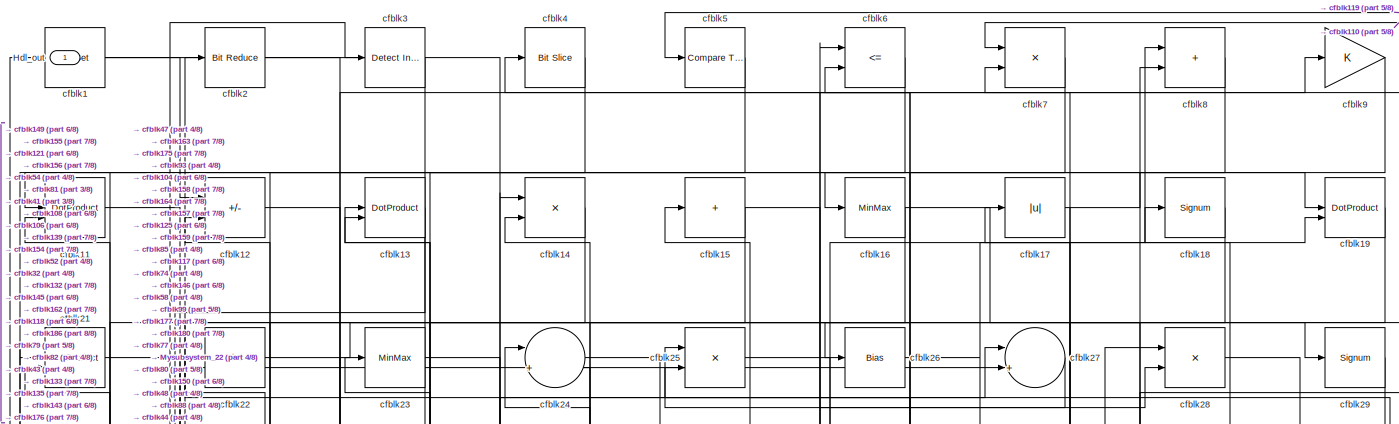
[diagram: root canvas - part 1/8, full width, top band]
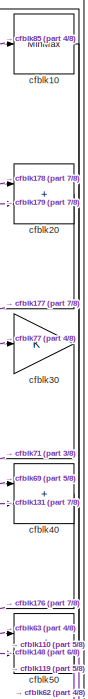
[diagram: root canvas - part 2/8, top right region]
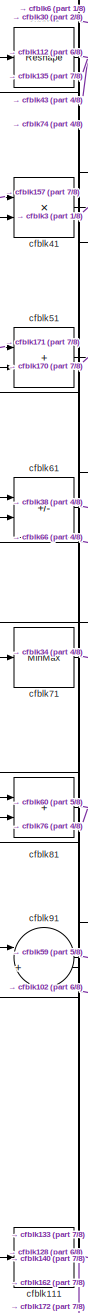
[diagram: root canvas - part 3/8, middle left region]
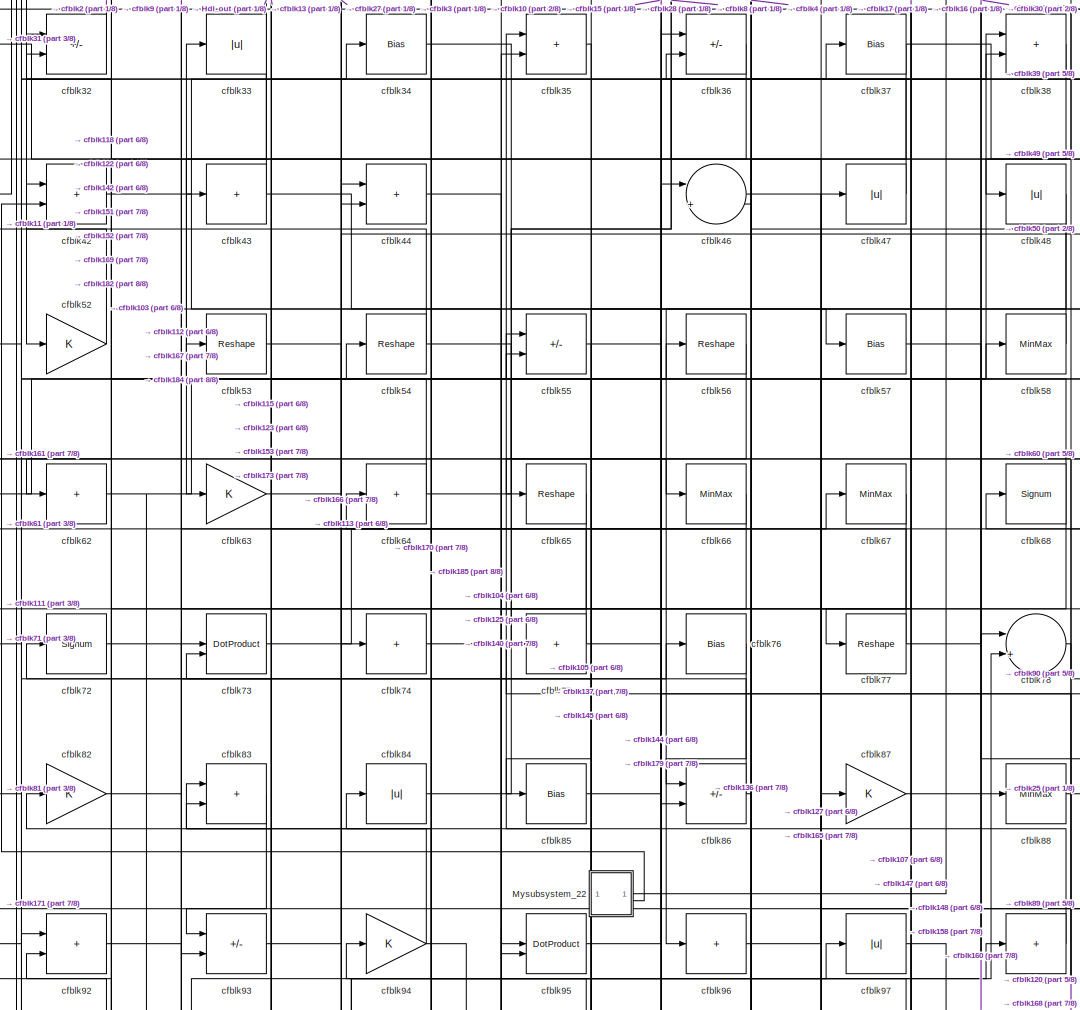
[diagram: root canvas - part 4/8, central region]
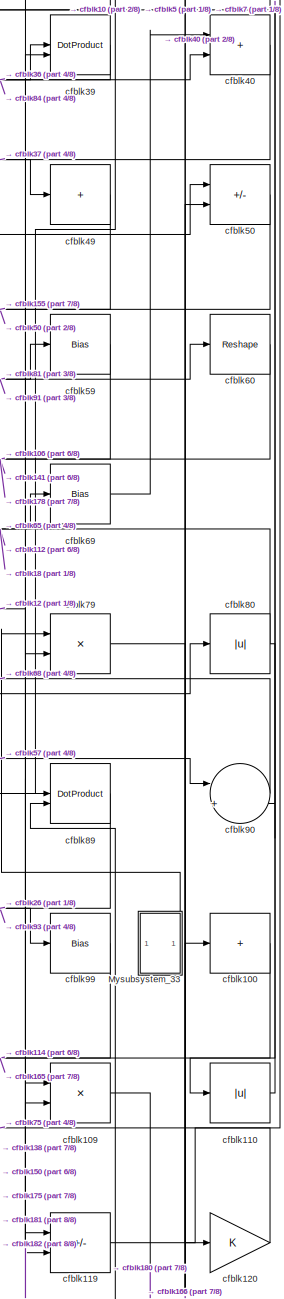
[diagram: root canvas - part 5/8, middle right region]
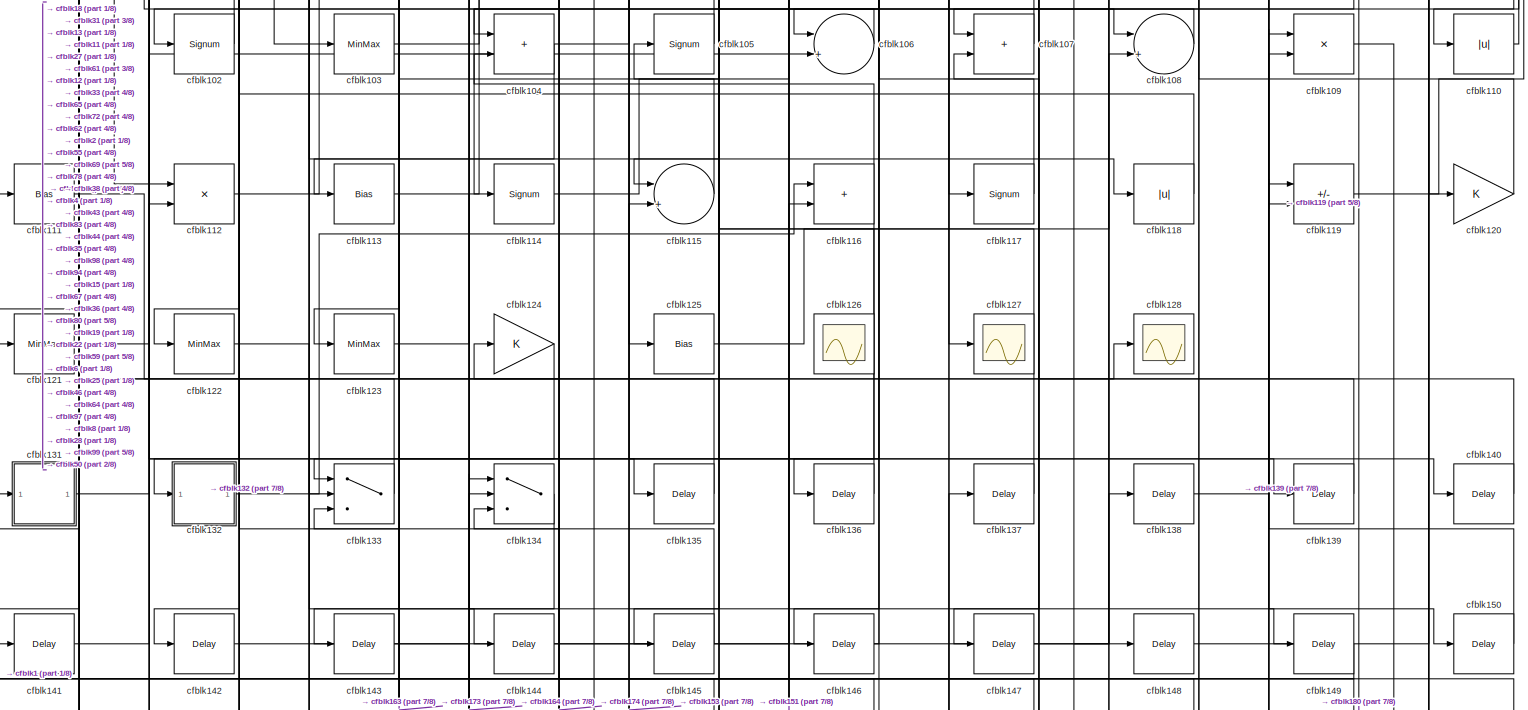
[diagram: root canvas - part 6/8, full width, middle band]
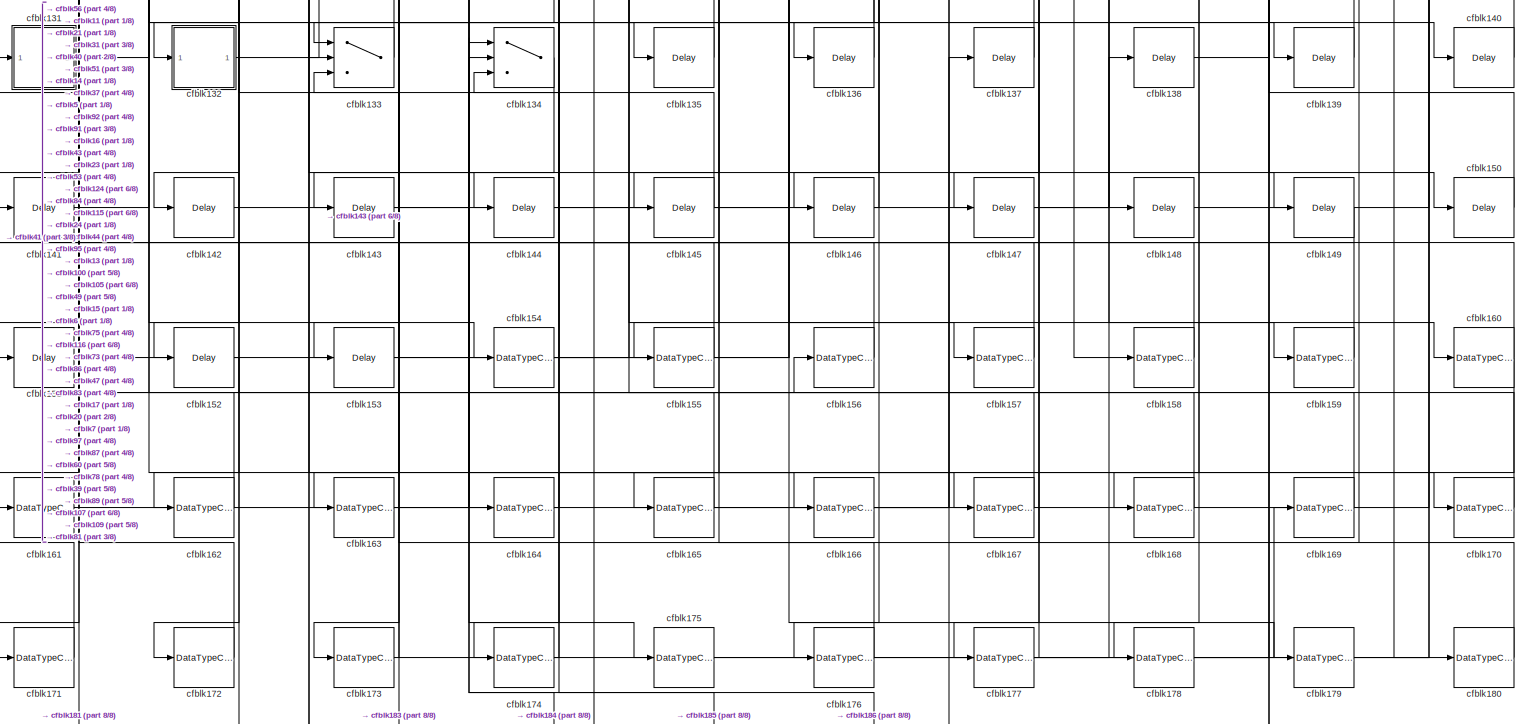
[diagram: root canvas - part 7/8, full width, bottom band]
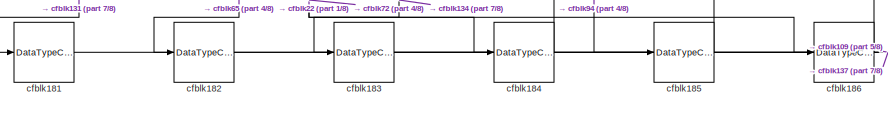
[diagram: root canvas - part 8/8, bottom left region]
MODEL slx_869042adbb3d
KIND model
CONFIG AbsTol = auto
CONFIG EnableMultiTasking = off
CONFIG FixedStep = auto
CONFIG MaxStep = auto
CONFIG MinStep = auto
CONFIG RelTol = 1e-3
CONFIG SampleTimeConstraint = Unconstrained
CONFIG SolverName = VariableStepAuto
CONFIG StartTime = 0.0
CONFIG StopTime = 10.0
BLOCK [Outport] Hdl_out
  OutDataTypeStr = uint8
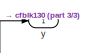
[diagram: Mysubsystem_22 - part 1/3, top right region]
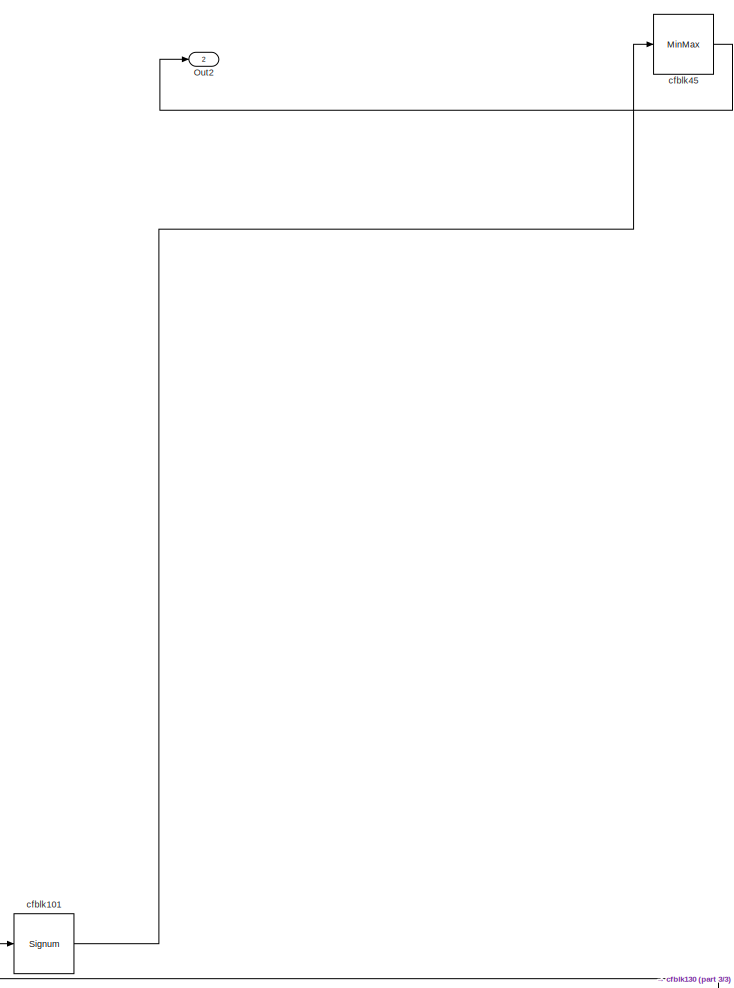
[diagram: Mysubsystem_22 - part 2/3, middle left region]
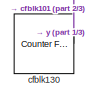
[diagram: Mysubsystem_22 - part 3/3, bottom right region]
BLOCK [SubSystem] Mysubsystem_22
  RTWFcnName = Mysubsystem_22
  RTWFcnNameOpts = User specified
  RTWFileNameOpts = Use function name
  RTWSystemCode = Reusable function
  TreatAsAtomicUnit = on
BLOCK [Outport] Mysubsystem_22/Out2
  Port = 2
BLOCK [Signum] Mysubsystem_22/cfblk101
BLOCK [Reference] Mysubsystem_22/cfblk130  REF=hdlsllib/Sources/Counter
Free-Running
  SourceBlock = hdlsllib/Sources/Counter\nFree-Running
  SourceType = Counter Free-Running
BLOCK [MinMax] Mysubsystem_22/cfblk45
BLOCK [Outport] Mysubsystem_22/y
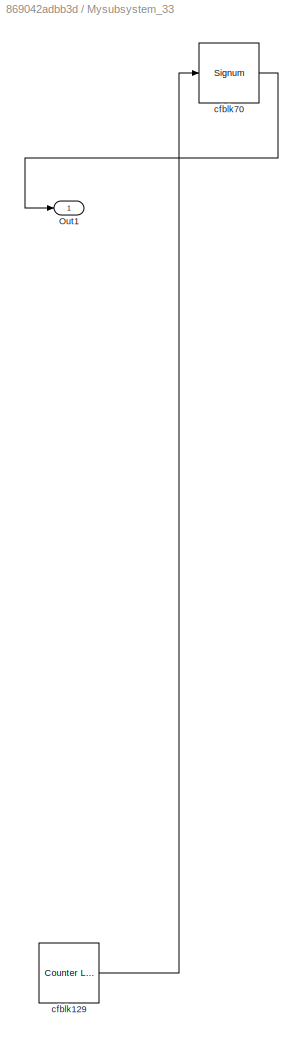
BLOCK [SubSystem] Mysubsystem_33
  RTWFcnName = Mysubsystem_33
  RTWFcnNameOpts = User specified
  RTWFileNameOpts = Use function name
  RTWSystemCode = Reusable function
  TreatAsAtomicUnit = on
BLOCK [Outport] Mysubsystem_33/Out1
BLOCK [Reference] Mysubsystem_33/cfblk129  REF=hdlsllib/Sources/Counter
Limited
  SourceBlock = hdlsllib/Sources/Counter\nLimited
  SourceType = Counter Limited
BLOCK [Signum] Mysubsystem_33/cfblk70
BLOCK [Reference] cfblk1  REF=simulink/Logic and Bit
Operations/Bit Set
  LibrarySourceBlock = hdlsllib/Logic and Bit\nOperations/Bit Set
  SourceBlock = simulink/Logic and Bit\nOperations/Bit Set
  SourceType = Bit Set
BLOCK [MinMax] cfblk10
  OutDataTypeStr = uint8
BLOCK [Sum] cfblk100
  IconShape = rectangular
  Inputs = +
  OutDataTypeStr = uint8
BLOCK [Signum] cfblk102
BLOCK [MinMax] cfblk103
  OutDataTypeStr = uint8
BLOCK [Sum] cfblk104
  IconShape = rectangular
  OutDataTypeStr = uint8
BLOCK [Signum] cfblk105
BLOCK [Sum] cfblk106
  Inputs = |++
  OutDataTypeStr = uint8
BLOCK [Sum] cfblk107
  IconShape = rectangular
  OutDataTypeStr = uint8
BLOCK [Sum] cfblk108
  Inputs = |++
  OutDataTypeStr = uint8
BLOCK [Product] cfblk109
  Inputs = */
  OutDataTypeStr = uint8
  RndMeth = Zero
  SaturateOnIntegerOverflow = on
BLOCK [DotProduct] cfblk11
  OutDataTypeStr = uint8
BLOCK [Abs] cfblk110
  OutDataTypeStr = uint8
  SaturateOnIntegerOverflow = off
BLOCK [Bias] cfblk111
  Bias = 0.0
  SaturateOnIntegerOverflow = off
BLOCK [Product] cfblk112
  Inputs = */
  OutDataTypeStr = uint8
  RndMeth = Zero
  SaturateOnIntegerOverflow = on
BLOCK [Bias] cfblk113
  Bias = 0.0
  SaturateOnIntegerOverflow = off
BLOCK [Signum] cfblk114
BLOCK [Sum] cfblk115
  Inputs = |++
  OutDataTypeStr = uint8
BLOCK [Sum] cfblk116
  IconShape = rectangular
  OutDataTypeStr = uint8
BLOCK [Signum] cfblk117
BLOCK [Abs] cfblk118
  OutDataTypeStr = uint8
  SaturateOnIntegerOverflow = off
BLOCK [Sum] cfblk119
  IconShape = rectangular
  Inputs = +-
  OutDataTypeStr = uint8
BLOCK [Sum] cfblk12
  IconShape = rectangular
  Inputs = +-
  OutDataTypeStr = uint8
BLOCK [Gain] cfblk120
  OutDataTypeStr = uint8
BLOCK [MinMax] cfblk121
  OutDataTypeStr = uint8
BLOCK [MinMax] cfblk122
  OutDataTypeStr = uint8
BLOCK [MinMax] cfblk123
  OutDataTypeStr = uint8
BLOCK [Gain] cfblk124
  OutDataTypeStr = uint8
BLOCK [Bias] cfblk125
  Bias = 0.0
  SaturateOnIntegerOverflow = off
BLOCK [Scope] cfblk126
  Floating = on
  NumInputPorts = 1
  ScopeSpecificationString = Simulink.scopes.TimeScopeBlockCfg('CurrentConfiguration', extmgr.ConfigurationSet(extmgr.Configuration('Core','General UI',true,'FigureColor',[0.156862745098039 0.156862745098039 0.156862745098039]),extmgr.Configuration('Core','Source UI',true),extmgr.Configuration('Sources','WiredSimulink',true,'DataLoggingVariableName','ScopeData1','DataLoggingSaveFormat','StructureWithTime','DataLoggingLimitDat...<+2713ch>
BLOCK [Scope] cfblk127
  Floating = off
  NumInputPorts = 1
  ScopeSpecificationString = Simulink.scopes.TimeScopeBlockCfg('CurrentConfiguration', extmgr.ConfigurationSet(extmgr.Configuration('Core','General UI',true),extmgr.Configuration('Core','Source UI',true),extmgr.Configuration('Sources','WiredSimulink',true,'DataLoggingVariableName','ScopeData2','DataLoggingSaveFormat','Array','DataLoggingLimitDataPoints',true,'DataLoggingDecimation','1'),extmgr.Configuration('Visuals','Time Do...<+868ch>
BLOCK [Scope] cfblk128
  Floating = off
  NumInputPorts = 1
  ScopeSpecificationString = Simulink.scopes.TimeScopeBlockCfg('CurrentConfiguration', extmgr.ConfigurationSet(extmgr.Configuration('Core','General UI',true),extmgr.Configuration('Core','Source UI',true),extmgr.Configuration('Sources','WiredSimulink',true,'DataLoggingVariableName','ScopeData2','DataLoggingSaveFormat','Array','DataLoggingLimitDataPoints',true,'DataLoggingDecimation','1'),extmgr.Configuration('Visuals','Time Do...<+868ch>
BLOCK [DotProduct] cfblk13
  OutDataTypeStr = uint8
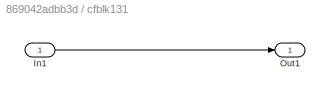
BLOCK [SubSystem] cfblk131
  LibrarySourceBlock = hdlsllib/Ports &\nSubsystems/Subsystem
BLOCK [Inport] cfblk131/In1
BLOCK [Outport] cfblk131/Out1
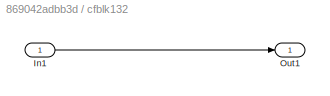
BLOCK [SubSystem] cfblk132
  LibrarySourceBlock = hdlsllib/Ports &\nSubsystems/Subsystem
BLOCK [Inport] cfblk132/In1
BLOCK [Outport] cfblk132/Out1
BLOCK [Switch] cfblk133
  InputSameDT = off
  OutDataTypeStr = uint8
  SaturateOnIntegerOverflow = off
BLOCK [Switch] cfblk134
  InputSameDT = off
  OutDataTypeStr = uint8
  SaturateOnIntegerOverflow = off
BLOCK [Delay] cfblk135
  InputPortMap = u0
  SampleTime = 1
BLOCK [Delay] cfblk136
  InputPortMap = u0
  SampleTime = 1
BLOCK [Delay] cfblk137
  InputPortMap = u0
  SampleTime = 1
BLOCK [Delay] cfblk138
  InputPortMap = u0
  SampleTime = 1
BLOCK [Delay] cfblk139
  InputPortMap = u0
  SampleTime = 1
BLOCK [Product] cfblk14
  Inputs = */
  OutDataTypeStr = uint8
  RndMeth = Zero
  SaturateOnIntegerOverflow = on
BLOCK [Delay] cfblk140
  InputPortMap = u0
  SampleTime = 1
BLOCK [Delay] cfblk141
  InputPortMap = u0
  SampleTime = 1
BLOCK [Delay] cfblk142
  InputPortMap = u0
  SampleTime = 1
BLOCK [Delay] cfblk143
  InputPortMap = u0
  SampleTime = 1
BLOCK [Delay] cfblk144
  InputPortMap = u0
  SampleTime = 1
BLOCK [Delay] cfblk145
  InputPortMap = u0
  SampleTime = 1
BLOCK [Delay] cfblk146
  InputPortMap = u0
  SampleTime = 1
BLOCK [Delay] cfblk147
  InputPortMap = u0
  SampleTime = 1
BLOCK [Delay] cfblk148
  InputPortMap = u0
  SampleTime = 1
BLOCK [Delay] cfblk149
  InputPortMap = u0
  SampleTime = 1
BLOCK [Sum] cfblk15
  IconShape = rectangular
  Inputs = +
  OutDataTypeStr = uint8
BLOCK [Delay] cfblk150
  InputPortMap = u0
  SampleTime = 1
BLOCK [Delay] cfblk151
  InputPortMap = u0
  SampleTime = 1
BLOCK [Delay] cfblk152
  InputPortMap = u0
  SampleTime = 1
BLOCK [Delay] cfblk153
  InputPortMap = u0
  SampleTime = 1
BLOCK [DataTypeConversion] cfblk154
  OutDataTypeStr = uint8
  RndMeth = Floor
  SaturateOnIntegerOverflow = off
BLOCK [DataTypeConversion] cfblk155
  OutDataTypeStr = uint8
  RndMeth = Floor
  SaturateOnIntegerOverflow = off
BLOCK [DataTypeConversion] cfblk156
  OutDataTypeStr = uint8
  RndMeth = Floor
  SaturateOnIntegerOverflow = off
BLOCK [DataTypeConversion] cfblk157
  OutDataTypeStr = uint8
  RndMeth = Floor
  SaturateOnIntegerOverflow = off
BLOCK [DataTypeConversion] cfblk158
  OutDataTypeStr = uint8
  RndMeth = Floor
  SaturateOnIntegerOverflow = off
BLOCK [DataTypeConversion] cfblk159
  OutDataTypeStr = uint8
  RndMeth = Floor
  SaturateOnIntegerOverflow = off
BLOCK [MinMax] cfblk16
  OutDataTypeStr = uint8
BLOCK [DataTypeConversion] cfblk160
  OutDataTypeStr = uint8
  RndMeth = Floor
  SaturateOnIntegerOverflow = off
BLOCK [DataTypeConversion] cfblk161
  OutDataTypeStr = uint8
  RndMeth = Floor
  SaturateOnIntegerOverflow = off
BLOCK [DataTypeConversion] cfblk162
  OutDataTypeStr = uint8
  RndMeth = Floor
  SaturateOnIntegerOverflow = off
BLOCK [DataTypeConversion] cfblk163
  OutDataTypeStr = uint8
  RndMeth = Floor
  SaturateOnIntegerOverflow = off
BLOCK [DataTypeConversion] cfblk164
  OutDataTypeStr = uint8
  RndMeth = Floor
  SaturateOnIntegerOverflow = off
BLOCK [DataTypeConversion] cfblk165
  OutDataTypeStr = uint8
  RndMeth = Floor
  SaturateOnIntegerOverflow = off
BLOCK [DataTypeConversion] cfblk166
  OutDataTypeStr = uint8
  RndMeth = Floor
  SaturateOnIntegerOverflow = off
BLOCK [DataTypeConversion] cfblk167
  OutDataTypeStr = uint8
  RndMeth = Floor
  SaturateOnIntegerOverflow = off
BLOCK [DataTypeConversion] cfblk168
  OutDataTypeStr = uint8
  RndMeth = Floor
  SaturateOnIntegerOverflow = off
BLOCK [DataTypeConversion] cfblk169
  OutDataTypeStr = uint8
  RndMeth = Floor
  SaturateOnIntegerOverflow = off
BLOCK [Abs] cfblk17
  OutDataTypeStr = uint8
  SaturateOnIntegerOverflow = off
BLOCK [DataTypeConversion] cfblk170
  OutDataTypeStr = uint8
  RndMeth = Floor
  SaturateOnIntegerOverflow = off
BLOCK [DataTypeConversion] cfblk171
  OutDataTypeStr = uint8
  RndMeth = Floor
  SaturateOnIntegerOverflow = off
BLOCK [DataTypeConversion] cfblk172
  OutDataTypeStr = uint8
  RndMeth = Floor
  SaturateOnIntegerOverflow = off
BLOCK [DataTypeConversion] cfblk173
  OutDataTypeStr = uint8
  RndMeth = Floor
  SaturateOnIntegerOverflow = off
BLOCK [DataTypeConversion] cfblk174
  OutDataTypeStr = uint8
  RndMeth = Floor
  SaturateOnIntegerOverflow = off
BLOCK [DataTypeConversion] cfblk175
  OutDataTypeStr = uint8
  RndMeth = Floor
  SaturateOnIntegerOverflow = off
BLOCK [DataTypeConversion] cfblk176
  OutDataTypeStr = uint8
  RndMeth = Floor
  SaturateOnIntegerOverflow = off
BLOCK [DataTypeConversion] cfblk177
  OutDataTypeStr = uint8
  RndMeth = Floor
  SaturateOnIntegerOverflow = off
BLOCK [DataTypeConversion] cfblk178
  OutDataTypeStr = uint8
  RndMeth = Floor
  SaturateOnIntegerOverflow = off
BLOCK [DataTypeConversion] cfblk179
  OutDataTypeStr = uint8
  RndMeth = Floor
  SaturateOnIntegerOverflow = off
BLOCK [Signum] cfblk18
BLOCK [DataTypeConversion] cfblk180
  OutDataTypeStr = uint8
  RndMeth = Floor
  SaturateOnIntegerOverflow = off
BLOCK [DataTypeConversion] cfblk181
  OutDataTypeStr = uint8
  RndMeth = Floor
  SaturateOnIntegerOverflow = off
BLOCK [DataTypeConversion] cfblk182
  OutDataTypeStr = uint8
  RndMeth = Floor
  SaturateOnIntegerOverflow = off
BLOCK [DataTypeConversion] cfblk183
  OutDataTypeStr = uint8
  RndMeth = Floor
  SaturateOnIntegerOverflow = off
BLOCK [DataTypeConversion] cfblk184
  OutDataTypeStr = uint8
  RndMeth = Floor
  SaturateOnIntegerOverflow = off
BLOCK [DataTypeConversion] cfblk185
  OutDataTypeStr = uint8
  RndMeth = Floor
  SaturateOnIntegerOverflow = off
BLOCK [DataTypeConversion] cfblk186
  OutDataTypeStr = uint8
  RndMeth = Floor
  SaturateOnIntegerOverflow = off
BLOCK [DotProduct] cfblk19
  OutDataTypeStr = uint8
BLOCK [Reference] cfblk2  REF=hdlsllib/Logic and Bit
Operations/Bit Reduce
  SourceBlock = hdlsllib/Logic and Bit\nOperations/Bit Reduce
  SourceType = Bit Reduce
BLOCK [Sum] cfblk20
  IconShape = rectangular
  OutDataTypeStr = uint8
BLOCK [DotProduct] cfblk21
  OutDataTypeStr = uint8
BLOCK [Bias] cfblk22
  Bias = 0.0
  SaturateOnIntegerOverflow = off
BLOCK [MinMax] cfblk23
  OutDataTypeStr = uint8
BLOCK [Sum] cfblk24
  Inputs = |++
  OutDataTypeStr = uint8
BLOCK [Product] cfblk25
  Inputs = */
  OutDataTypeStr = uint8
  RndMeth = Zero
  SaturateOnIntegerOverflow = on
BLOCK [Bias] cfblk26
  Bias = 0.0
  SaturateOnIntegerOverflow = off
BLOCK [Sum] cfblk27
  Inputs = |++
  OutDataTypeStr = uint8
BLOCK [Product] cfblk28
  Inputs = */
  OutDataTypeStr = uint8
  RndMeth = Zero
  SaturateOnIntegerOverflow = on
BLOCK [Signum] cfblk29
BLOCK [Reference] cfblk3  REF=simulink/Logic and Bit
Operations/Detect
Increase
  LibrarySourceBlock = hdlsllib/Logic and Bit\nOperations/Detect\nIncrease
  SourceBlock = simulink/Logic and Bit\nOperations/Detect\nIncrease
  SourceType = Detect Increase
BLOCK [Gain] cfblk30
  OutDataTypeStr = uint8
BLOCK [Reshape] cfblk31
BLOCK [Sum] cfblk32
  IconShape = rectangular
  Inputs = +-
  OutDataTypeStr = uint8
BLOCK [Abs] cfblk33
  OutDataTypeStr = uint8
  SaturateOnIntegerOverflow = off
BLOCK [Bias] cfblk34
  Bias = 0.0
  SaturateOnIntegerOverflow = off
BLOCK [Sum] cfblk35
  IconShape = rectangular
  OutDataTypeStr = uint8
BLOCK [Sum] cfblk36
  IconShape = rectangular
  Inputs = +-
  OutDataTypeStr = uint8
BLOCK [Bias] cfblk37
  Bias = 0.0
  SaturateOnIntegerOverflow = off
BLOCK [Sum] cfblk38
  IconShape = rectangular
  OutDataTypeStr = uint8
BLOCK [DotProduct] cfblk39
  OutDataTypeStr = uint8
BLOCK [Reference] cfblk4  REF=hdlsllib/Logic and Bit
Operations/Bit Slice
  SourceBlock = hdlsllib/Logic and Bit\nOperations/Bit Slice
  SourceType = Bit Slice
BLOCK [Sum] cfblk40
  IconShape = rectangular
  OutDataTypeStr = uint8
BLOCK [Product] cfblk41
  Inputs = */
  OutDataTypeStr = uint8
  RndMeth = Zero
  SaturateOnIntegerOverflow = on
BLOCK [Sum] cfblk42
  IconShape = rectangular
  OutDataTypeStr = uint8
BLOCK [Sum] cfblk43
  IconShape = rectangular
  Inputs = +
  OutDataTypeStr = uint8
BLOCK [Sum] cfblk44
  IconShape = rectangular
  OutDataTypeStr = uint8
BLOCK [Sum] cfblk46
  Inputs = |++
  OutDataTypeStr = uint8
BLOCK [Abs] cfblk47
  OutDataTypeStr = uint8
  SaturateOnIntegerOverflow = off
BLOCK [Abs] cfblk48
  OutDataTypeStr = uint8
  SaturateOnIntegerOverflow = off
BLOCK [Sum] cfblk49
  IconShape = rectangular
  Inputs = +
  OutDataTypeStr = uint8
BLOCK [Reference] cfblk5  REF=hdlsllib/Logic and Bit
Operations/Compare
To Constant
  SourceBlock = hdlsllib/Logic and Bit\nOperations/Compare\nTo Constant
  SourceType = Compare To Constant
BLOCK [Sum] cfblk50
  IconShape = rectangular
  Inputs = +-
  OutDataTypeStr = uint8
BLOCK [Sum] cfblk51
  IconShape = rectangular
  OutDataTypeStr = uint8
BLOCK [Gain] cfblk52
  OutDataTypeStr = uint8
BLOCK [Reshape] cfblk53
BLOCK [Reshape] cfblk54
BLOCK [Sum] cfblk55
  IconShape = rectangular
  Inputs = +-
  OutDataTypeStr = uint8
BLOCK [Reshape] cfblk56
BLOCK [Bias] cfblk57
  Bias = 0.0
  SaturateOnIntegerOverflow = off
BLOCK [MinMax] cfblk58
  OutDataTypeStr = uint8
BLOCK [Bias] cfblk59
  Bias = 0.0
  SaturateOnIntegerOverflow = off
BLOCK [RelationalOperator] cfblk6
  InputSameDT = off
  Operator = <=
  OutDataTypeStr = boolean
BLOCK [Reshape] cfblk60
BLOCK [Sum] cfblk61
  IconShape = rectangular
  Inputs = +-
  OutDataTypeStr = uint8
BLOCK [Sum] cfblk62
  IconShape = rectangular
  Inputs = +
  OutDataTypeStr = uint8
BLOCK [Gain] cfblk63
  OutDataTypeStr = uint8
BLOCK [Sum] cfblk64
  IconShape = rectangular
  Inputs = +
  OutDataTypeStr = uint8
BLOCK [Reshape] cfblk65
BLOCK [MinMax] cfblk66
  OutDataTypeStr = uint8
BLOCK [MinMax] cfblk67
  OutDataTypeStr = uint8
BLOCK [Signum] cfblk68
BLOCK [Bias] cfblk69
  Bias = 0.0
  SaturateOnIntegerOverflow = off
BLOCK [Product] cfblk7
  Inputs = */
  OutDataTypeStr = uint8
  RndMeth = Zero
  SaturateOnIntegerOverflow = on
BLOCK [MinMax] cfblk71
  OutDataTypeStr = uint8
BLOCK [Signum] cfblk72
BLOCK [DotProduct] cfblk73
  OutDataTypeStr = uint8
BLOCK [Sum] cfblk74
  IconShape = rectangular
  Inputs = +
  OutDataTypeStr = uint8
BLOCK [Sum] cfblk75
  IconShape = rectangular
  Inputs = +
  OutDataTypeStr = uint8
BLOCK [Bias] cfblk76
  Bias = 0.0
  SaturateOnIntegerOverflow = off
BLOCK [Reshape] cfblk77
BLOCK [Sum] cfblk78
  Inputs = |++
  OutDataTypeStr = uint8
BLOCK [Product] cfblk79
  Inputs = */
  OutDataTypeStr = uint8
  RndMeth = Zero
  SaturateOnIntegerOverflow = on
BLOCK [Sum] cfblk8
  IconShape = rectangular
  OutDataTypeStr = uint8
BLOCK [Abs] cfblk80
  OutDataTypeStr = uint8
  SaturateOnIntegerOverflow = off
BLOCK [Sum] cfblk81
  IconShape = rectangular
  OutDataTypeStr = uint8
BLOCK [Gain] cfblk82
  OutDataTypeStr = uint8
BLOCK [Sum] cfblk83
  IconShape = rectangular
  OutDataTypeStr = uint8
BLOCK [Abs] cfblk84
  OutDataTypeStr = uint8
  SaturateOnIntegerOverflow = off
BLOCK [Bias] cfblk85
  Bias = 0.0
  SaturateOnIntegerOverflow = off
BLOCK [Sum] cfblk86
  IconShape = rectangular
  Inputs = +-
  OutDataTypeStr = uint8
BLOCK [Gain] cfblk87
  OutDataTypeStr = uint8
BLOCK [MinMax] cfblk88
  OutDataTypeStr = uint8
BLOCK [DotProduct] cfblk89
  OutDataTypeStr = uint8
BLOCK [Gain] cfblk9
  OutDataTypeStr = uint8
BLOCK [Sum] cfblk90
  Inputs = |++
  OutDataTypeStr = uint8
BLOCK [Sum] cfblk91
  Inputs = |++
  OutDataTypeStr = uint8
BLOCK [Sum] cfblk92
  IconShape = rectangular
  OutDataTypeStr = uint8
BLOCK [Sum] cfblk93
  IconShape = rectangular
  Inputs = +-
  OutDataTypeStr = uint8
BLOCK [Gain] cfblk94
  OutDataTypeStr = uint8
BLOCK [DotProduct] cfblk95
  OutDataTypeStr = uint8
BLOCK [Sum] cfblk96
  IconShape = rectangular
  Inputs = +
  OutDataTypeStr = uint8
BLOCK [Abs] cfblk97
  OutDataTypeStr = uint8
  SaturateOnIntegerOverflow = off
BLOCK [Sum] cfblk98
  IconShape = rectangular
  Inputs = +
  OutDataTypeStr = uint8
BLOCK [Bias] cfblk99
  Bias = 0.0
  SaturateOnIntegerOverflow = off
LINE Mysubsystem_22/cfblk101:1 -> Mysubsystem_22/cfblk45:1
NET Mysubsystem_22/cfblk130:1 -> Mysubsystem_22/cfblk101:1, Mysubsystem_22/y:1
LINE Mysubsystem_22/cfblk45:1 -> Mysubsystem_22/Out2:1
LINE Mysubsystem_22:1 -> cfblk28:1
LINE Mysubsystem_22:2 -> cfblk42:2
LINE Mysubsystem_33/cfblk129:1 -> Mysubsystem_33/cfblk70:1
LINE Mysubsystem_33/cfblk70:1 -> Mysubsystem_33/Out1:1
LINE Mysubsystem_33:1 -> cfblk79:1
LINE cfblk100:1 -> cfblk165:1
LINE cfblk102:1 -> cfblk61:1
LINE cfblk103:1 -> cfblk35:2
NET cfblk104:1 -> cfblk113:1, cfblk98:1
LINE cfblk105:1 -> cfblk94:1
LINE cfblk106:1 -> cfblk102:1
LINE cfblk107:1 -> cfblk64:1
LINE cfblk108:1 -> cfblk107:1
LINE cfblk109:1 -> cfblk180:1
LINE cfblk10:1 -> cfblk110:1
LINE cfblk110:1 -> cfblk7:1
LINE cfblk111:1 -> cfblk128:1
NET cfblk112:1 -> cfblk55:2, cfblk69:1, cfblk78:2
NET cfblk113:1 -> cfblk149:1, cfblk97:1
LINE cfblk114:1 -> cfblk80:1
LINE cfblk115:1 -> cfblk83:1
NET cfblk116:1 -> cfblk104:2, cfblk163:1
LINE cfblk117:1 -> cfblk22:1
LINE cfblk118:1 -> cfblk72:1
LINE cfblk119:1 -> cfblk5:1
NET cfblk11:1 -> cfblk106:2, cfblk133:2, cfblk139:1
LINE cfblk120:1 -> cfblk75:1
LINE cfblk121:1 -> cfblk27:2
LINE cfblk122:1 -> cfblk144:1
LINE cfblk123:1 -> cfblk44:1
LINE cfblk124:1 -> cfblk173:1
NET cfblk125:1 -> cfblk15:1, cfblk8:2
LINE cfblk12:1 -> cfblk79:2
LINE cfblk131/In1:1 -> cfblk131/Out1:1
NET cfblk131:1 -> cfblk181:1, cfblk40:2
LINE cfblk132/In1:1 -> cfblk132/Out1:1
LINE cfblk132:1 -> cfblk116:1
NET cfblk133:1 -> cfblk91:1, cfblk91:2
LINE cfblk134:1 -> cfblk183:1
LINE cfblk135:1 -> cfblk13:2
LINE cfblk136:1 -> cfblk73:1
LINE cfblk137:1 -> cfblk83:2
LINE cfblk138:1 -> cfblk39:2
LINE cfblk139:1 -> cfblk107:2
LINE cfblk13:1 -> cfblk108:1
LINE cfblk140:1 -> cfblk81:2
LINE cfblk141:1 -> cfblk112:2
LINE cfblk142:1 -> cfblk78:1
LINE cfblk143:1 -> cfblk164:1
LINE cfblk144:1 -> cfblk36:1
LINE cfblk145:1 -> cfblk12:2
LINE cfblk146:1 -> cfblk6:2
LINE cfblk147:1 -> cfblk108:2
LINE cfblk148:1 -> cfblk50:2
LINE cfblk149:1 -> cfblk1:1
LINE cfblk14:1 -> cfblk162:1
LINE cfblk150:1 -> cfblk119:1
LINE cfblk151:1 -> cfblk116:2
LINE cfblk152:1 -> cfblk172:1
LINE cfblk153:1 -> cfblk115:2
LINE cfblk154:1 -> cfblk6:1
LINE cfblk155:1 -> cfblk21:1
LINE cfblk156:1 -> cfblk21:2
LINE cfblk157:1 -> cfblk41:1
LINE cfblk158:1 -> cfblk24:1
LINE cfblk159:1 -> cfblk24:2
NET cfblk15:1 -> cfblk159:1, cfblk52:1
NET cfblk160:1 -> cfblk133:3, cfblk174:1
LINE cfblk161:1 -> cfblk87:1
LINE cfblk162:1 -> cfblk31:1
LINE cfblk163:1 -> cfblk14:1
LINE cfblk164:1 -> cfblk14:2
NET cfblk165:1 -> cfblk131:1, cfblk47:1
LINE cfblk166:1 -> cfblk100:1
NET cfblk167:1 -> cfblk156:1, cfblk95:1
LINE cfblk168:1 -> cfblk92:1
LINE cfblk169:1 -> cfblk92:2
NET cfblk16:1 -> cfblk133:1, cfblk88:1
LINE cfblk170:1 -> cfblk84:1
LINE cfblk171:1 -> cfblk51:1
LINE cfblk172:1 -> cfblk51:2
NET cfblk173:1 -> cfblk169:1, cfblk73:2
LINE cfblk174:1 -> cfblk124:1
LINE cfblk175:1 -> cfblk89:1
LINE cfblk176:1 -> cfblk23:1
NET cfblk177:1 -> cfblk138:1, cfblk7:2
LINE cfblk178:1 -> cfblk20:1
LINE cfblk179:1 -> cfblk20:2
NET cfblk17:1 -> cfblk19:1, cfblk77:1
NET cfblk180:1 -> cfblk105:1, cfblk17:1, cfblk89:2
LINE cfblk181:1 -> cfblk109:1
LINE cfblk182:1 -> cfblk109:2
LINE cfblk183:1 -> cfblk137:1
LINE cfblk184:1 -> cfblk134:1
LINE cfblk185:1 -> cfblk134:2
LINE cfblk186:1 -> cfblk134:3
LINE cfblk18:1 -> cfblk121:1
NET cfblk19:1 -> cfblk104:1, cfblk146:1
LINE cfblk1:1 -> cfblk12:1
LINE cfblk20:1 -> cfblk177:1
LINE cfblk21:1 -> cfblk154:1
NET cfblk22:1 -> cfblk186:1, cfblk29:1
LINE cfblk23:1 -> cfblk175:1
LINE cfblk24:1 -> cfblk157:1
LINE cfblk25:1 -> cfblk117:1
NET cfblk26:1 -> cfblk19:2, cfblk99:1
LINE cfblk27:1 -> cfblk25:2
LINE cfblk28:1 -> cfblk150:1
LINE cfblk29:1 -> cfblk48:1
LINE cfblk2:1 -> cfblk118:1
LINE cfblk30:1 -> cfblk71:1
NET cfblk31:1 -> cfblk112:1, cfblk135:1, cfblk43:1, cfblk74:1
LINE cfblk32:1 -> cfblk2:1
LINE cfblk33:1 -> cfblk122:1
LINE cfblk34:1 -> cfblk57:1
LINE cfblk35:1 -> cfblk85:1
LINE cfblk36:1 -> cfblk63:1
NET cfblk37:1 -> cfblk151:1, cfblk152:1, cfblk46:2, cfblk49:1
LINE cfblk38:1 -> cfblk123:1
LINE cfblk39:1 -> cfblk36:2
LINE cfblk3:1 -> cfblk44:2
LINE cfblk40:1 -> cfblk176:1
LINE cfblk41:1 -> cfblk3:1
NET cfblk42:1 -> cfblk37:1, cfblk86:2
NET cfblk43:1 -> Hdl_out:1, cfblk125:1, cfblk153:1
LINE cfblk44:1 -> cfblk140:1
LINE cfblk46:1 -> cfblk127:1
LINE cfblk47:1 -> cfblk13:1
LINE cfblk48:1 -> cfblk96:1
LINE cfblk49:1 -> cfblk155:1
LINE cfblk4:1 -> cfblk143:1
NET cfblk50:1 -> cfblk119:2, cfblk62:1
LINE cfblk51:1 -> cfblk170:1
LINE cfblk52:1 -> cfblk42:1
LINE cfblk53:1 -> cfblk166:1
NET cfblk54:1 -> cfblk11:2, cfblk66:1
NET cfblk55:1 -> cfblk145:1, cfblk38:2
LINE cfblk56:1 -> cfblk161:1
LINE cfblk57:1 -> cfblk90:1
LINE cfblk58:1 -> cfblk4:1
NET cfblk59:1 -> cfblk106:1, cfblk141:1
LINE cfblk5:1 -> cfblk132:1
NET cfblk60:1 -> cfblk178:1, cfblk65:1
LINE cfblk61:1 -> cfblk38:1
NET cfblk62:1 -> cfblk103:1, cfblk54:1
LINE cfblk63:1 -> cfblk50:1
NET cfblk64:1 -> cfblk32:1, cfblk56:1
NET cfblk65:1 -> cfblk142:1, cfblk182:1
NET cfblk66:1 -> cfblk111:1, cfblk61:2
LINE cfblk67:1 -> cfblk115:1
NET cfblk68:1 -> cfblk33:1, cfblk95:2
LINE cfblk69:1 -> cfblk40:1
NET cfblk6:1 -> cfblk41:2, cfblk81:1
LINE cfblk71:1 -> cfblk34:1
LINE cfblk72:1 -> cfblk184:1
LINE cfblk73:1 -> cfblk67:1
LINE cfblk74:1 -> cfblk8:1
NET cfblk75:1 -> cfblk179:1, cfblk53:1
LINE cfblk76:1 -> cfblk86:1
NET cfblk77:1 -> cfblk30:1, cfblk55:1
LINE cfblk78:1 -> cfblk168:1
LINE cfblk79:1 -> cfblk120:1
LINE cfblk7:1 -> cfblk11:1
NET cfblk80:1 -> cfblk18:1, cfblk90:2
NET cfblk81:1 -> cfblk60:1, cfblk76:1
NET cfblk82:1 -> cfblk93:2, cfblk9:1
LINE cfblk83:1 -> cfblk171:1
LINE cfblk84:1 -> cfblk39:1
NET cfblk85:1 -> cfblk10:1, cfblk28:2
NET cfblk86:1 -> cfblk136:1, cfblk32:2
LINE cfblk87:1 -> cfblk160:1
LINE cfblk88:1 -> cfblk25:1
LINE cfblk89:1 -> cfblk93:1
LINE cfblk8:1 -> cfblk26:1
LINE cfblk90:1 -> cfblk68:1
LINE cfblk91:1 -> cfblk59:1
LINE cfblk92:1 -> cfblk167:1
LINE cfblk93:1 -> cfblk27:1
NET cfblk94:1 -> cfblk185:1, cfblk82:1
LINE cfblk95:1 -> cfblk46:1
LINE cfblk96:1 -> cfblk58:1
NET cfblk97:1 -> cfblk147:1, cfblk148:1, cfblk158:1
LINE cfblk98:1 -> cfblk35:1
LINE cfblk99:1 -> cfblk114:1
LINE cfblk9:1 -> cfblk16:1
note: NET lines group one-source signal fan-out (src -> all destinations, sorted); 1:1 wires keep LINE
